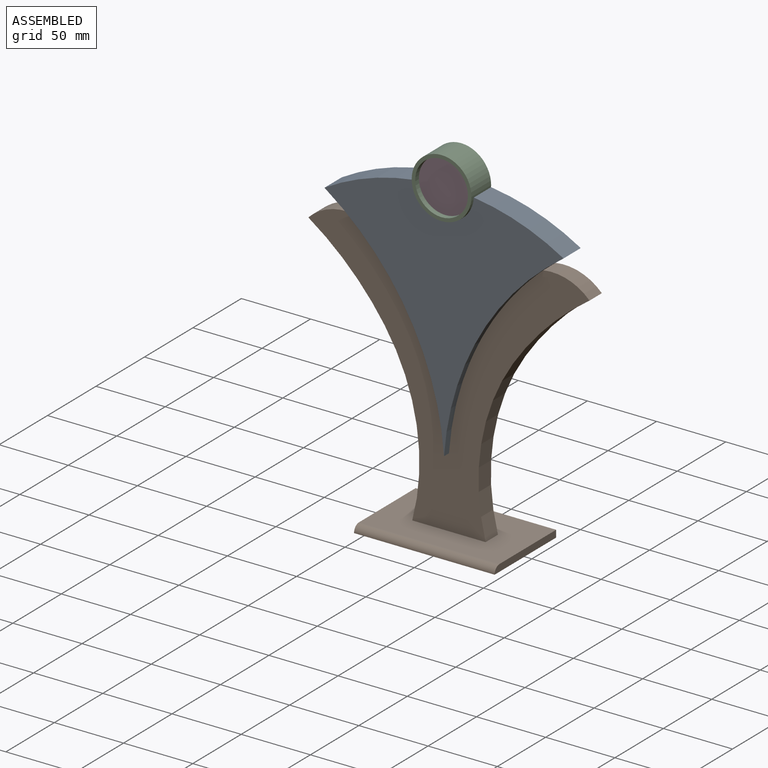
[diagram: assembled view]
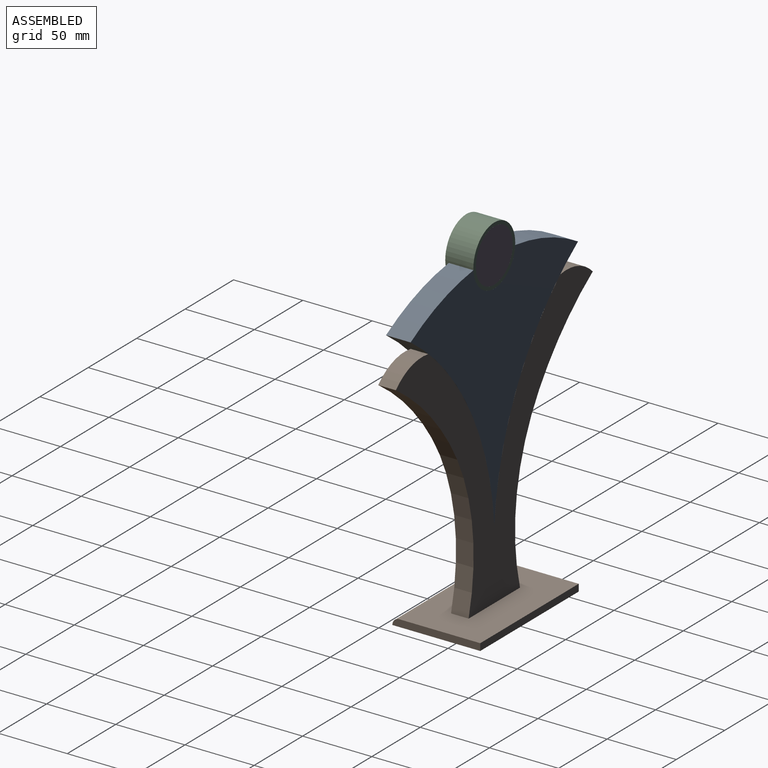
[diagram: assembled view, second angle]
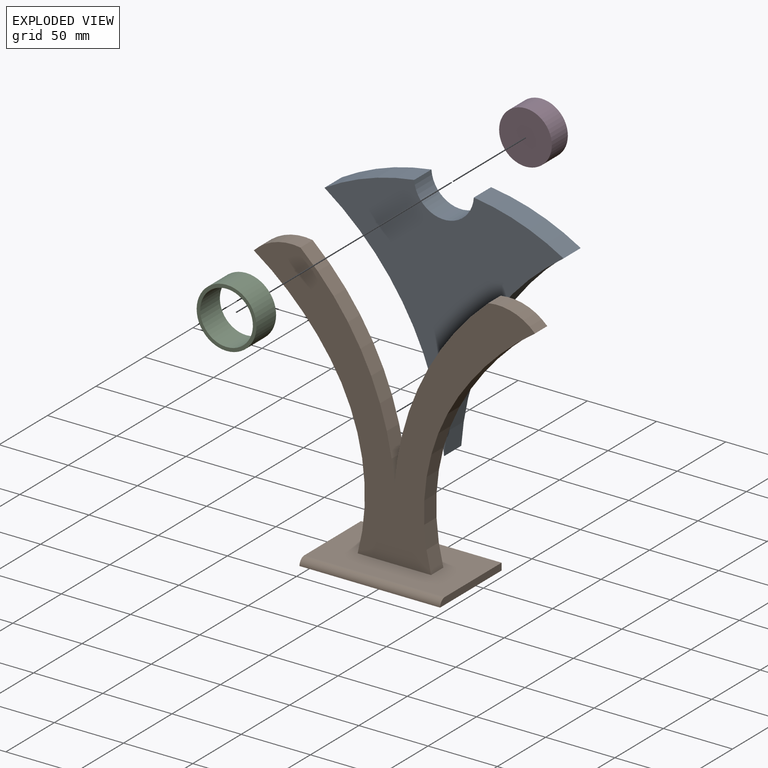
[diagram: exploded view]
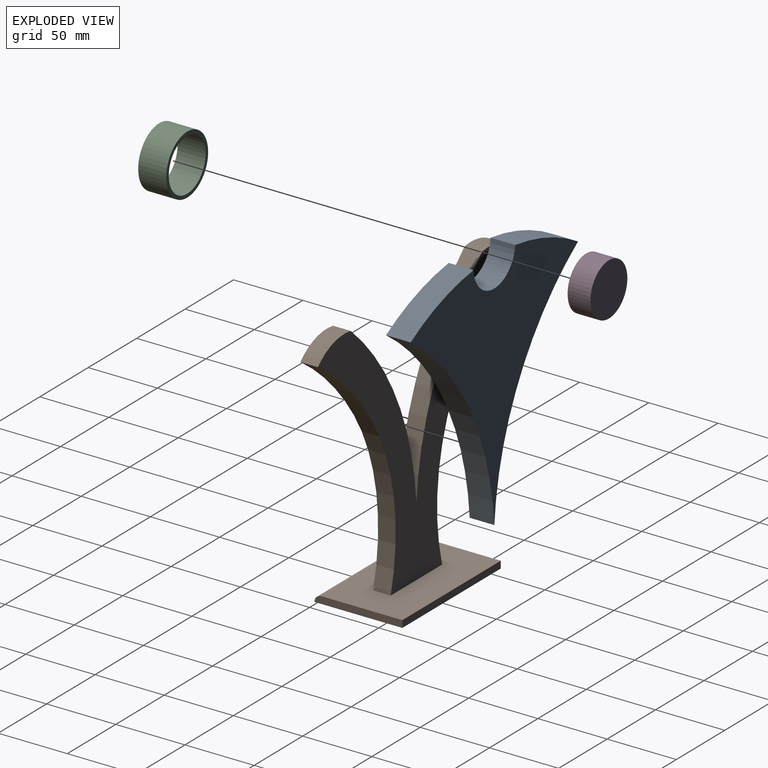
[diagram: exploded view, second angle]
ASSEMBLY  parts=4 mates=4
PART A: 7 faces, bbox 172.7x17.8x174.7 mm
  f0: cylinder r=203.2mm len=152.24mm, axis (0,1,0), area 3217.2mm2, adj f1,f4,f5,f6
  f1: cylinder r=203.2mm len=152.24mm, axis (0,1,0), area 3217.2mm2, adj f0,f2,f5,f6
  f2: cylinder r=168.46mm len=64.81mm, axis (0,1,0), area 1228.1mm2, adj f1,f3,f5,f6
  f3: cylinder r=21.59mm len=43.09mm, axis (0,1,0), area 1156.7mm2, adj f2,f4,f5,f6
  f4: cylinder r=168.46mm len=64.81mm, axis (0,1,0), area 1228.1mm2, adj f0,f3,f5,f6
  f5: plane 174.67x172.72mm, normal (0,-1,0), area 10548.9mm2, adj f0,f1,f2,f3,f4
  f6: plane 174.67x172.72mm, normal (0,1,0), area 10548.9mm2, adj f0,f1,f2,f3,f4
PART B: 16 faces, bbox 203.2x63.5x194.3 mm
  f0: cylinder r=203.2mm len=55.81mm, axis (0,1,0), area 1003.6mm2, adj f5,f6,f7,f8
  f1: cylinder r=203.2mm len=55.81mm, axis (0,1,0), area 1003.6mm2, adj f2,f6,f7,f9
  f2: cylinder r=38.1mm len=33.73mm, axis (0,1,0), area 467.9mm2, adj f1,f3,f6,f7
  f3: cylinder r=203.2mm len=137.66mm, axis (0,1,0), area 1998.8mm2, adj f2,f4,f6,f7
  f4: cylinder r=203.2mm len=137.66mm, axis (0,1,0), area 1998.8mm2, adj f3,f5,f6,f7
  f5: cylinder r=38.1mm len=33.73mm, axis (0,1,0), area 467.9mm2, adj f0,f4,f6,f7
  f6: plane 203.2x189.19mm, normal (0,-1,0), area 10333.7mm2, adj f0,f1,f2,f3,f4,f5,f8,f9
  f7: plane 203.2x189.19mm, normal (0,1,0), area 10333.7mm2, adj f0,f1,f2,f3,f4,f5,f8,f9
  f8: cylinder r=150.05mm len=121.99mm, axis (0,1,0), area 1617.8mm2, adj f0,f6,f7,f10
  f9: cylinder r=150.05mm len=121.99mm, axis (0,1,0), area 1617.8mm2, adj f1,f6,f7,f10
  f10: plane 101.6x58.42mm, normal (0,0,1), area 5262.2mm2, adj f6,f7,f8,f9,f11,f12,f13,f15
  f11: plane 101.6x5.08mm, normal (0,1,0), area 516.1mm2, adj f10,f12,f13,f14
  f12: plane 63.5x5.08mm, normal (1,0,0), area 317mm2, adj f10,f11,f14,f15
  f13: plane 63.5x5.08mm, normal (-1,0,0), area 317mm2, adj f10,f11,f14,f15
  f14: plane 101.6x63.5mm, normal (0,0,-1), area 6451.6mm2, adj f11,f12,f13,f15
  f15: cylinder r=5.08mm len=101.6mm, axis (-1,0,0), area 810.7mm2, adj f10,f12,f13,f14
PART C: 4 faces, bbox 43.2x20.3x43.2 mm
  f0: cylinder r=19.05mm len=38.1mm, axis (0,1,0), area 2432.2mm2, adj f2,f3
  f1: cylinder r=21.59mm len=43.18mm, axis (0,1,0), area 2756.5mm2, adj f2,f3
  f2: plane 43.18x43.18mm, normal (0,-1,0), area 324.3mm2, adj f0,f1
  f3: plane 43.18x43.18mm, normal (0,1,0), area 324.3mm2, adj f0,f1
PART D: 3 faces, bbox 38.1x16.5x38.1 mm
  f0: cylinder r=19.05mm len=38.1mm, axis (0,1,0), area 1976.2mm2, adj f1,f2
  f1: plane 38.1x38.1mm, normal (0,-1,0), area 1140.1mm2, adj f0
  f2: plane 38.1x38.1mm, normal (0,1,0), area 1140.1mm2, adj f0
PLACE A t=(0,-1.49,0)mm
PLACE B t=(0,-1.49,0)mm
PLACE C t=(0,-1.49,0)mm
PLACE D t=(0,-1.49,0)mm
MATE fastened D.f0 <-> C.f0  axis (0,1,0) through (0,-1.49,138.12)mm
MATE fastened A.f6 <-> B.f7  axis (0,1,0) through (0,-1.49,-37.94)mm
MATE planar A.f6 <-> B.f7  axis (0,1,0) through (0,-1.49,84.57)mm
MATE fastened A.f3 <-> C.f0  axis (0,1,0) through (0,-1.49,138.12)mm
